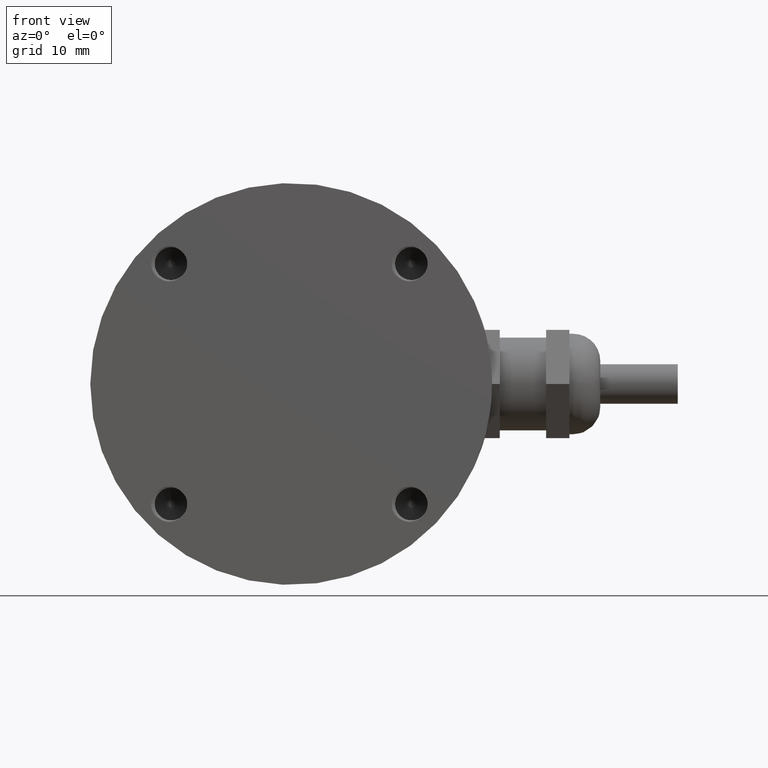
[diagram: clean part render]
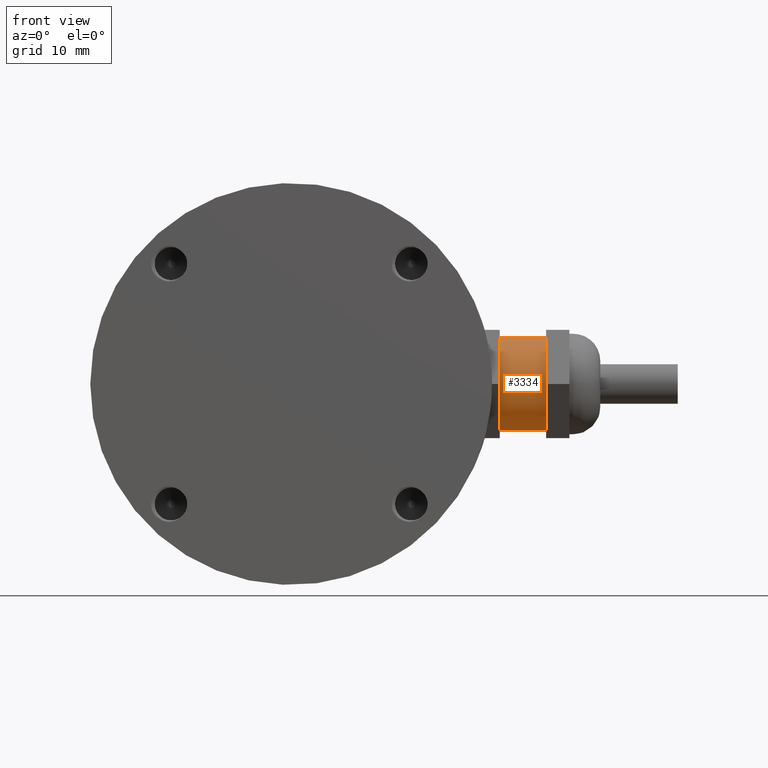
[diagram: same view with one face highlighted and labeled with its STEP entity id]
A machine part, front view. The second image highlights one B-rep face of the part: STEP entity #3334.
In plain terms, the highlighted cylindrical surface (bore or boss wall) has radius 6 mm, axis along (1, 0, 0).
Its self-contained STEP definition (entity closure, byte-faithful):
#366=FACE_OUTER_BOUND('',#582,.T.);
#582=EDGE_LOOP('',(#2155,#2156,#2157,#2158));
#810=LINE('',#4602,#1015);
#1015=VECTOR('',#3871,6.);
#1207=CIRCLE('',#3563,6.);
#1208=CIRCLE('',#3572,6.);
#1257=VERTEX_POINT('',#4573);
#1264=VERTEX_POINT('',#4601);
#1589=EDGE_CURVE('',#1257,#1257,#1207,.T.);
#1602=EDGE_CURVE('',#1257,#1264,#810,.T.);
#1603=EDGE_CURVE('',#1264,#1264,#1208,.T.);
#2155=ORIENTED_EDGE('',*,*,#1589,.F.);
#2156=ORIENTED_EDGE('',*,*,#1602,.T.);
#2157=ORIENTED_EDGE('',*,*,#1603,.F.);
#2158=ORIENTED_EDGE('',*,*,#1602,.F.);
#3150=CYLINDRICAL_SURFACE('',#3571,6.);
#3334=ADVANCED_FACE('',(#366),#3150,.T.);
#3563=AXIS2_PLACEMENT_3D('',#4574,#3841,#3842);
#3571=AXIS2_PLACEMENT_3D('',#4600,#3869,#3870);
#3572=AXIS2_PLACEMENT_3D('',#4603,#3872,#3873);
#3841=DIRECTION('center_axis',(1.,0.,0.));
#3842=DIRECTION('ref_axis',(0.,0.,-1.));
#3869=DIRECTION('center_axis',(1.,0.,0.));
#3870=DIRECTION('ref_axis',(0.,0.,-1.));
#3871=DIRECTION('',(-1.,0.,0.));
#3872=DIRECTION('center_axis',(-1.,0.,0.));
#3873=DIRECTION('ref_axis',(0.,0.,-1.));
#4573=CARTESIAN_POINT('',(9.,-7.34788079488412E-16,6.));
#4574=CARTESIAN_POINT('Origin',(9.,0.,0.));
#4600=CARTESIAN_POINT('Origin',(3.,0.,0.));
#4601=CARTESIAN_POINT('',(3.,-7.34788079488412E-16,6.));
#4602=CARTESIAN_POINT('',(3.,-7.34788079488412E-16,6.));
#4603=CARTESIAN_POINT('Origin',(3.,0.,0.));